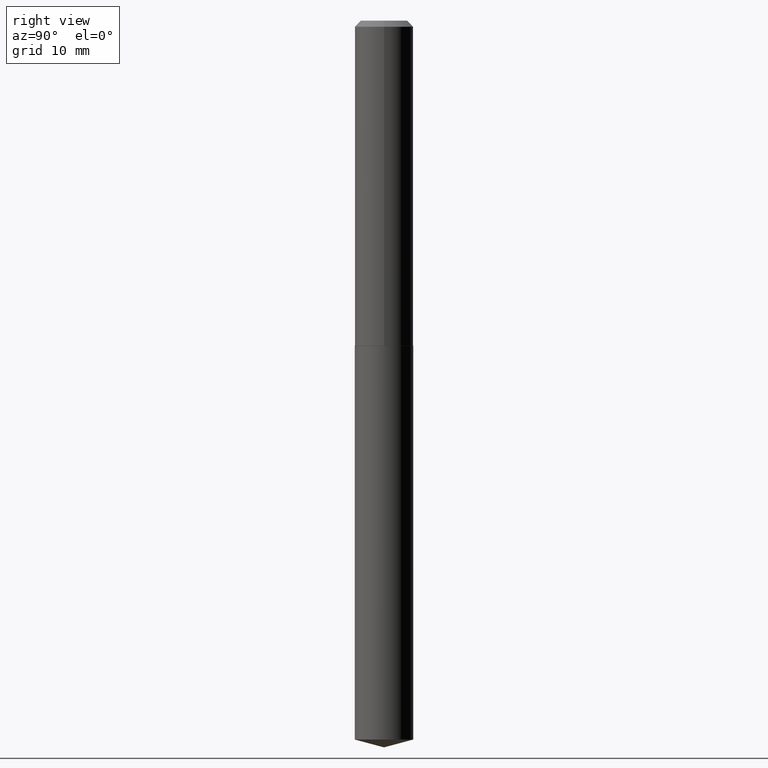
[diagram: clean part render]
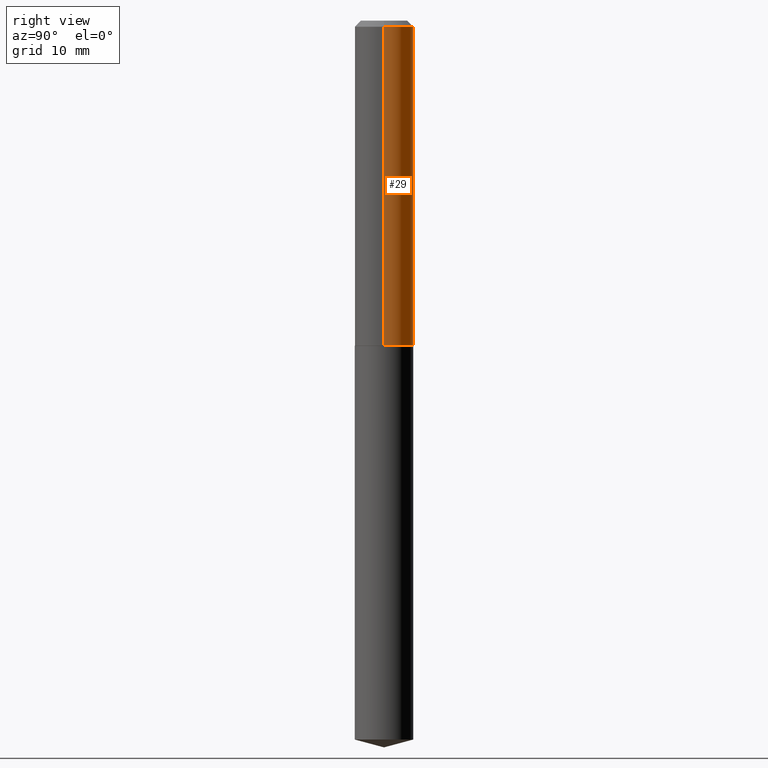
[diagram: same view with one face highlighted and labeled with its STEP entity id]
A machine part, right view. The second image highlights one B-rep face of the part: STEP entity #29.
In plain terms, the highlighted cylindrical surface (edge-blend (fillet) strip) has radius 3.8354 mm, axis along (-0, 0, 1).
Its self-contained STEP definition (entity closure, byte-faithful):
#3 = DIRECTION ( 'NONE',  ( 1.000000000000000000, -6.982962677686265133E-15, 0.000000000000000000 ) ) ;
#10 = EDGE_CURVE ( 'NONE', #37, #369, #39, .T. ) ;
#13 = ORIENTED_EDGE ( 'NONE', *, *, #10, .T. ) ;
#15 = ORIENTED_EDGE ( 'NONE', *, *, #220, .T. ) ;
#29 = ADVANCED_FACE ( 'NONE', ( #249 ), #221, .T. ) ;
#35 = CARTESIAN_POINT ( 'NONE',  ( 7.642090019328601786E-31, -1.091087918388490144E-16, -0.03125000000000020123 ) ) ;
#37 = VERTEX_POINT ( 'NONE', #143 ) ;
#39 = LINE ( 'NONE', #344, #171 ) ;
#40 = VERTEX_POINT ( 'NONE', #200 ) ;
#55 = CARTESIAN_POINT ( 'NONE',  ( 0.000000000000000000, 0.000000000000000000, 0.000000000000000000 ) ) ;
#81 = EDGE_CURVE ( 'NONE', #40, #99, #84, .T. ) ;
#84 = LINE ( 'NONE', #196, #366 ) ;
#99 = VERTEX_POINT ( 'NONE', #387 ) ;
#114 = DIRECTION ( 'NONE',  ( -2.445468806185136597E-29, 3.491481338843145583E-15, 1.000000000000000000 ) ) ;
#139 = CIRCLE ( 'NONE', #349, 0.1510000000000001896 ) ;
#140 = AXIS2_PLACEMENT_3D ( 'NONE', #35, #114, #3 ) ;
#143 = CARTESIAN_POINT ( 'NONE',  ( -0.1510000000000001896, -4.780548933572781158E-15, -1.676500000000000323 ) ) ;
#156 = DIRECTION ( 'NONE',  ( -2.445468806185136877E-29, 3.491481338843145188E-15, 1.000000000000000000 ) ) ;
#171 = VECTOR ( 'NONE', #156, 39.37007874015748143 ) ;
#196 = CARTESIAN_POINT ( 'NONE',  ( 0.1510000000000001064, -1.054427364330627007E-15, 7.363026931451867700E-30 ) ) ;
#200 = CARTESIAN_POINT ( 'NONE',  ( 0.1510000000000001896, -6.907895828901161779E-15, -1.676500000000000323 ) ) ;
#220 = EDGE_CURVE ( 'NONE', #40, #37, #139, .T. ) ;
#221 = CYLINDRICAL_SURFACE ( 'NONE', #277, 0.1510000000000001064 ) ;
#249 = FACE_OUTER_BOUND ( 'NONE', #326, .T. ) ;
#252 = ORIENTED_EDGE ( 'NONE', *, *, #284, .F. ) ;
#277 = AXIS2_PLACEMENT_3D ( 'NONE', #55, #288, #375 ) ;
#284 = EDGE_CURVE ( 'NONE', #99, #369, #364, .T. ) ;
#286 = ORIENTED_EDGE ( 'NONE', *, *, #81, .F. ) ;
#288 = DIRECTION ( 'NONE',  ( -2.445468806185136597E-29, 3.491481338843145583E-15, 1.000000000000000000 ) ) ;
#293 = DIRECTION ( 'NONE',  ( -2.445468806185136877E-29, 3.491481338843145188E-15, 1.000000000000000000 ) ) ;
#326 = EDGE_LOOP ( 'NONE', ( #15, #13, #252, #286 ) ) ;
#337 = DIRECTION ( 'NONE',  ( 1.000000000000000000, -6.982962677686266711E-15, 0.000000000000000000 ) ) ;
#344 = CARTESIAN_POINT ( 'NONE',  ( -0.1510000000000001064, 1.072919530997752036E-15, -7.427591986284911817E-30 ) ) ;
#349 = AXIS2_PLACEMENT_3D ( 'NONE', #361, #367, #337 ) ;
#361 = CARTESIAN_POINT ( 'NONE',  ( 4.099828453569381980E-29, -5.853468464570534180E-15, -1.676500000000000323 ) ) ;
#364 = CIRCLE ( 'NONE', #140, 0.1509999999999999953 ) ;
#365 = CARTESIAN_POINT ( 'NONE',  ( -0.1509999999999999953, -1.908369097206939012E-15, -0.03125000000000020123 ) ) ;
#366 = VECTOR ( 'NONE', #293, 39.37007874015748143 ) ;
#367 = DIRECTION ( 'NONE',  ( -2.445468806185136597E-29, 3.491481338843145583E-15, 1.000000000000000000 ) ) ;
#369 = VERTEX_POINT ( 'NONE', #365 ) ;
#375 = DIRECTION ( 'NONE',  ( 1.000000000000000000, -6.982962677686266711E-15, 4.876176775795935232E-29 ) ) ;
#387 = CARTESIAN_POINT ( 'NONE',  ( 0.1509999999999999953, -1.163536156169475122E-15, -0.03125000000000020123 ) ) ;